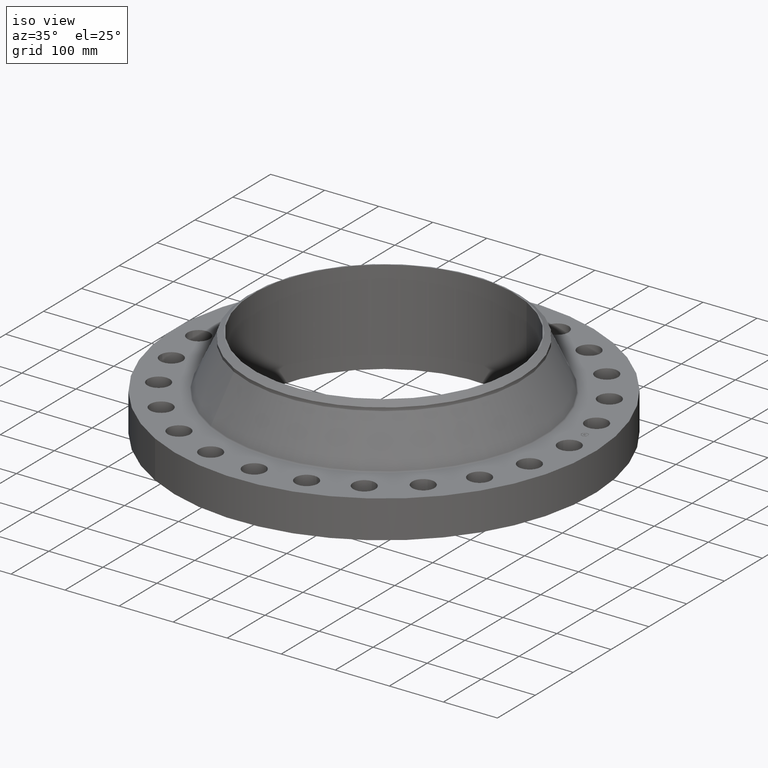
[diagram: clean part render]
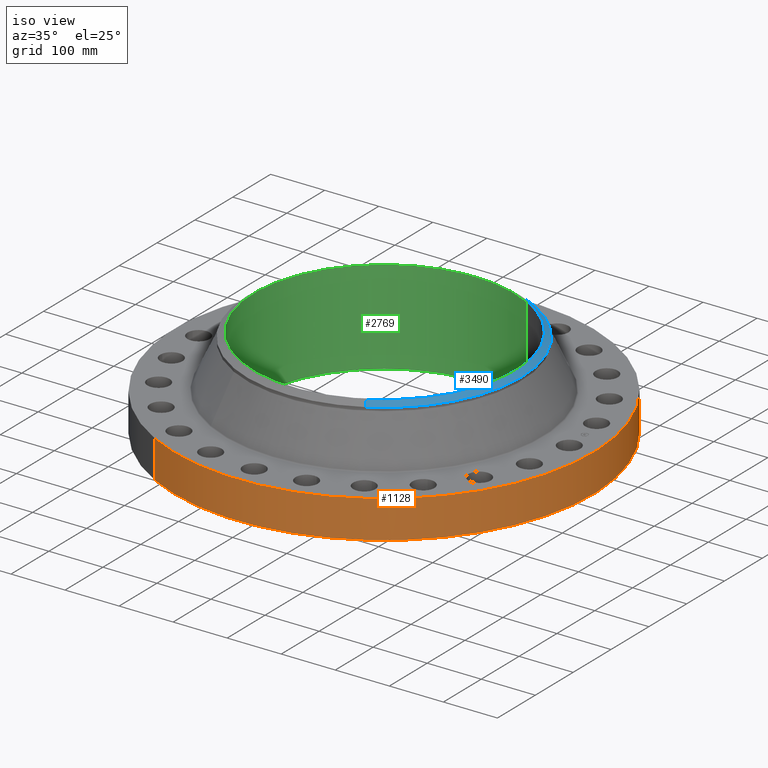
[diagram: same view with three faces highlighted in distinct colors, each labeled with its STEP entity id]
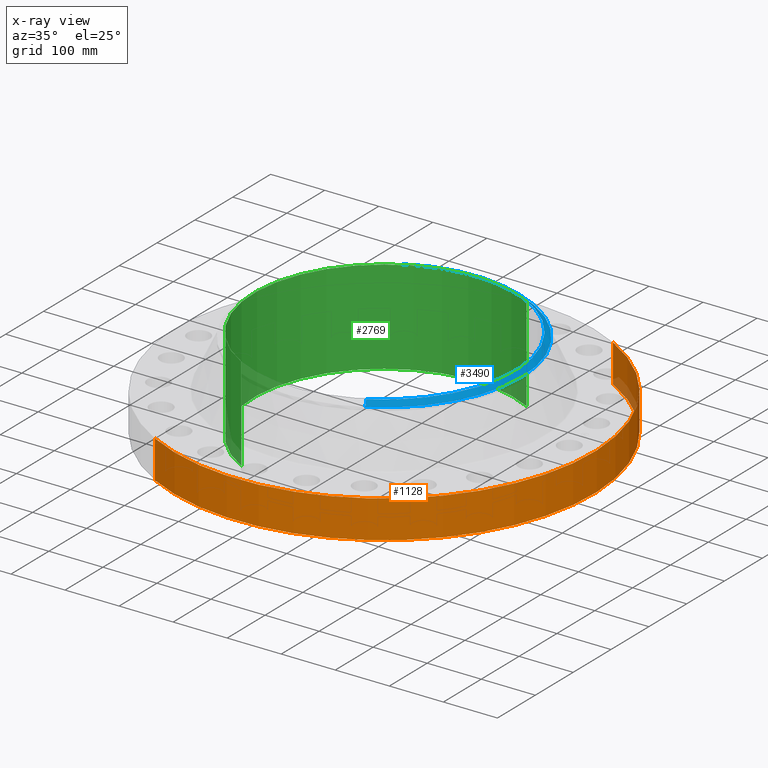
[diagram: x-ray of the same camera — body ghosted, the three highlighted faces saturated]
A machine part, iso view with three faces highlighted in distinct colors.
The next image is the same camera in x-ray (body ghosted, the three faces saturated) — at least one of them is partly hidden behind the body in this view.
Their STEP definitions:

[orange] entity #1128 — the highlighted cylindrical surface (partial cylindrical patch) has radius 387.35 mm, axis along (0, 0, -1).
#152=AXIS2_PLACEMENT_3D('Circle Axis2P3D',#150,#151,$) ;
#610=AXIS2_PLACEMENT_3D('Circle Axis2P3D',#608,#609,$) ;
#1120=AXIS2_PLACEMENT_3D('Cylinder Axis2P3D',#1117,#1118,#1119) ;
#145=CARTESIAN_POINT('Vertex',(-7.31123946377,-13.3831340689,2.23792987641E-015)) ;
#147=CARTESIAN_POINT('Vertex',(7.31123946377,13.3831340689,1.78586804137E-012)) ;
#150=CARTESIAN_POINT('Axis2P3D Location',(3.08521012762E-011,-2.18869541913E-012,0.)) ;
#608=CARTESIAN_POINT('Axis2P3D Location',(-1.28099106126E-011,1.16685663756E-011,2.75000000001)) ;
#612=CARTESIAN_POINT('Vertex',(7.31123946375,13.3831340689,2.74999999999)) ;
#614=CARTESIAN_POINT('Vertex',(-7.31123946377,-13.3831340689,2.74999999999)) ;
#1093=CARTESIAN_POINT('Line Origine',(-7.31123946377,-13.3831340689,1.37500000001)) ;
#1098=CARTESIAN_POINT('Line Origine',(7.31123946377,13.3831340689,1.37500000001)) ;
#1117=CARTESIAN_POINT('Axis2P3D Location',(0.,0.,3.18500000001)) ;
#151=DIRECTION('Axis2P3D Direction',(0.,0.,-0.0393700787402)) ;
#609=DIRECTION('Axis2P3D Direction',(0.,0.,-0.0393700787402)) ;
#1094=DIRECTION('Vector Direction',(0.,0.,-0.0393700787402)) ;
#1099=DIRECTION('Vector Direction',(0.,0.,-0.0393700787402)) ;
#1118=DIRECTION('Axis2P3D Direction',(0.,0.,-0.0393700787402)) ;
#1119=DIRECTION('Axis2P3D XDirection',(0.0188750212049,0.0345504945626,0.)) ;
#1095=VECTOR('Line Direction',#1094,0.0393700787402) ;
#1100=VECTOR('Line Direction',#1099,0.0393700787402) ;
#1123=ORIENTED_EDGE('',*,*,#154,.F.) ;
#1124=ORIENTED_EDGE('',*,*,#1102,.T.) ;
#1125=ORIENTED_EDGE('',*,*,#616,.T.) ;
#1126=ORIENTED_EDGE('',*,*,#1097,.F.) ;
#1128=ADVANCED_FACE('PartBody',(#1127),#1121,.T.) ;
#153=CIRCLE('generated circle',#152,15.2500000001) ;
#611=CIRCLE('generated circle',#610,15.2500000001) ;
#1121=CYLINDRICAL_SURFACE('generated cylinder',#1120,15.2500000001) ;
#154=EDGE_CURVE('',#148,#146,#153,.T.) ;
#616=EDGE_CURVE('',#613,#615,#611,.T.) ;
#1097=EDGE_CURVE('',#146,#615,#1096,.F.) ;
#1102=EDGE_CURVE('',#148,#613,#1101,.F.) ;
#1122=EDGE_LOOP('',(#1123,#1124,#1125,#1126)) ;
#1127=FACE_OUTER_BOUND('',#1122,.T.) ;
#1096=LINE('Line',#1093,#1095) ;
#1101=LINE('Line',#1098,#1100) ;
#146=VERTEX_POINT('',#145) ;
#148=VERTEX_POINT('',#147) ;
#613=VERTEX_POINT('',#612) ;
#615=VERTEX_POINT('',#614) ;

[blue] entity #3490 — the highlighted conical surface has half-angle 52.5 deg.
#2805=AXIS2_PLACEMENT_3D('Circle Axis2P3D',#2803,#2804,$) ;
#2830=AXIS2_PLACEMENT_3D('Circle Axis2P3D',#2828,#2829,$) ;
#3420=AXIS2_PLACEMENT_3D('Circle Axis2P3D',#3418,#3419,$) ;
#3481=AXIS2_PLACEMENT_3D('Cone Axis2P3D',#3478,#3479,#3480) ;
#2786=CARTESIAN_POINT('Vertex',(4.79425538605,8.7758256189,6.29675595391)) ;
#2800=CARTESIAN_POINT('Vertex',(-4.79425538604,8.7758256189,6.29675595391)) ;
#2803=CARTESIAN_POINT('Axis2P3D Location',(0.,0.,6.29675595391)) ;
#2828=CARTESIAN_POINT('Axis2P3D Location',(0.,0.,6.29675595391)) ;
#2832=CARTESIAN_POINT('Vertex',(4.79425538604,-8.7758256189,6.29675595391)) ;
#3418=CARTESIAN_POINT('Axis2P3D Location',(-5.59482469102E-016,-1.1189649382E-015,6.62000000003)) ;
#3422=CARTESIAN_POINT('Vertex',(4.59229265917,-8.40613532712,6.62000000003)) ;
#3424=CARTESIAN_POINT('Vertex',(-4.59229265917,8.40613532712,6.62000000003)) ;
#3453=CARTESIAN_POINT('Line Origine',(4.69327402262,-8.59098047303,6.45837797697)) ;
#3458=CARTESIAN_POINT('Line Origine',(-4.69327402262,8.59098047303,6.45837797697)) ;
#3478=CARTESIAN_POINT('Axis2P3D Location',(0.,0.,6.62000000003)) ;
#2804=DIRECTION('Axis2P3D Direction',(-0.,0.,-0.0393700787402)) ;
#2829=DIRECTION('Axis2P3D Direction',(-0.,0.,-0.0393700787402)) ;
#3419=DIRECTION('Axis2P3D Direction',(0.,0.,-0.0393700787402)) ;
#3454=DIRECTION('Vector Direction',(0.014974561121,-0.02741075027,-0.023966985394)) ;
#3459=DIRECTION('Vector Direction',(-0.014974561121,0.02741075027,-0.023966985394)) ;
#3479=DIRECTION('Axis2P3D Direction',(-0.,-0.,-0.0393700787402)) ;
#3480=DIRECTION('Axis2P3D XDirection',(-0.0188750212049,0.0345504945626,0.)) ;
#3455=VECTOR('Line Direction',#3454,0.0393700787402) ;
#3460=VECTOR('Line Direction',#3459,0.0393700787402) ;
#3484=ORIENTED_EDGE('',*,*,#3462,.F.) ;
#3485=ORIENTED_EDGE('',*,*,#3426,.F.) ;
#3486=ORIENTED_EDGE('',*,*,#3457,.T.) ;
#3487=ORIENTED_EDGE('',*,*,#2834,.T.) ;
#3488=ORIENTED_EDGE('',*,*,#2807,.F.) ;
#3490=ADVANCED_FACE('PartBody',(#3489),#3482,.T.) ;
#2806=CIRCLE('generated circle',#2805,10.) ;
#2831=CIRCLE('generated circle',#2830,10.) ;
#3421=CIRCLE('generated circle',#3420,9.5787401575) ;
#3482=CONICAL_SURFACE('Cone',#3481,9.57874015752,0.916297857297) ;
#2807=EDGE_CURVE('',#2801,#2787,#2806,.T.) ;
#2834=EDGE_CURVE('',#2833,#2787,#2831,.F.) ;
#3426=EDGE_CURVE('',#3423,#3425,#3421,.F.) ;
#3457=EDGE_CURVE('',#3423,#2833,#3456,.T.) ;
#3462=EDGE_CURVE('',#3425,#2801,#3461,.T.) ;
#3483=EDGE_LOOP('',(#3484,#3485,#3486,#3487,#3488)) ;
#3489=FACE_OUTER_BOUND('',#3483,.T.) ;
#3456=LINE('Line',#3453,#3455) ;
#3461=LINE('Line',#3458,#3460) ;
#2787=VERTEX_POINT('',#2786) ;
#2801=VERTEX_POINT('',#2800) ;
#2833=VERTEX_POINT('',#2832) ;
#3423=VERTEX_POINT('',#3422) ;
#3425=VERTEX_POINT('',#3424) ;

[green] entity #2769 — the highlighted cylindrical surface (partial cylindrical patch) has radius 241.3 mm, axis along (-0, 0, -1).
#2459=AXIS2_PLACEMENT_3D('Circle Axis2P3D',#2457,#2458,$) ;
#2756=AXIS2_PLACEMENT_3D('Cylinder Axis2P3D',#2753,#2754,#2755) ;
#2760=AXIS2_PLACEMENT_3D('Circle Axis2P3D',#2758,#2759,$) ;
#2452=CARTESIAN_POINT('Vertex',(4.55454261676,8.33703433799,-0.250000000001)) ;
#2454=CARTESIAN_POINT('Vertex',(-4.55454261676,-8.33703433799,-0.249999999984)) ;
#2457=CARTESIAN_POINT('Axis2P3D Location',(-3.35689481461E-015,1.0665973791E-011,-0.250000000001)) ;
#2724=CARTESIAN_POINT('Vertex',(4.55454261676,8.33703433799,6.62)) ;
#2726=CARTESIAN_POINT('Vertex',(-4.55454261676,-8.33703433799,6.62)) ;
#2729=CARTESIAN_POINT('Line Origine',(4.55454261676,8.33703433799,3.18500000001)) ;
#2734=CARTESIAN_POINT('Line Origine',(-4.55454261676,-8.33703433799,3.18500000001)) ;
#2753=CARTESIAN_POINT('Axis2P3D Location',(0.,0.,3.18500000001)) ;
#2758=CARTESIAN_POINT('Axis2P3D Location',(0.,0.,6.62)) ;
#2458=DIRECTION('Axis2P3D Direction',(0.,0.,-0.0393700787402)) ;
#2730=DIRECTION('Vector Direction',(0.,0.,-0.0393700787402)) ;
#2735=DIRECTION('Vector Direction',(0.,0.,-0.0393700787402)) ;
#2754=DIRECTION('Axis2P3D Direction',(-0.,0.,-0.0393700787402)) ;
#2755=DIRECTION('Axis2P3D XDirection',(-0.0188750212049,-0.0345504945626,0.)) ;
#2759=DIRECTION('Axis2P3D Direction',(-0.,0.,-0.0393700787402)) ;
#2731=VECTOR('Line Direction',#2730,0.0393700787402) ;
#2736=VECTOR('Line Direction',#2735,0.0393700787402) ;
#2764=ORIENTED_EDGE('',*,*,#2762,.F.) ;
#2765=ORIENTED_EDGE('',*,*,#2738,.T.) ;
#2766=ORIENTED_EDGE('',*,*,#2461,.T.) ;
#2767=ORIENTED_EDGE('',*,*,#2733,.F.) ;
#2769=ADVANCED_FACE('PartBody',(#2768),#2757,.F.) ;
#2460=CIRCLE('generated circle',#2459,9.50000000004) ;
#2761=CIRCLE('generated circle',#2760,9.50000000004) ;
#2757=CYLINDRICAL_SURFACE('generated cylinder',#2756,9.50000000004) ;
#2461=EDGE_CURVE('',#2455,#2453,#2460,.T.) ;
#2733=EDGE_CURVE('',#2725,#2453,#2732,.T.) ;
#2738=EDGE_CURVE('',#2727,#2455,#2737,.T.) ;
#2762=EDGE_CURVE('',#2727,#2725,#2761,.T.) ;
#2763=EDGE_LOOP('',(#2764,#2765,#2766,#2767)) ;
#2768=FACE_OUTER_BOUND('',#2763,.T.) ;
#2732=LINE('Line',#2729,#2731) ;
#2737=LINE('Line',#2734,#2736) ;
#2453=VERTEX_POINT('',#2452) ;
#2455=VERTEX_POINT('',#2454) ;
#2725=VERTEX_POINT('',#2724) ;
#2727=VERTEX_POINT('',#2726) ;